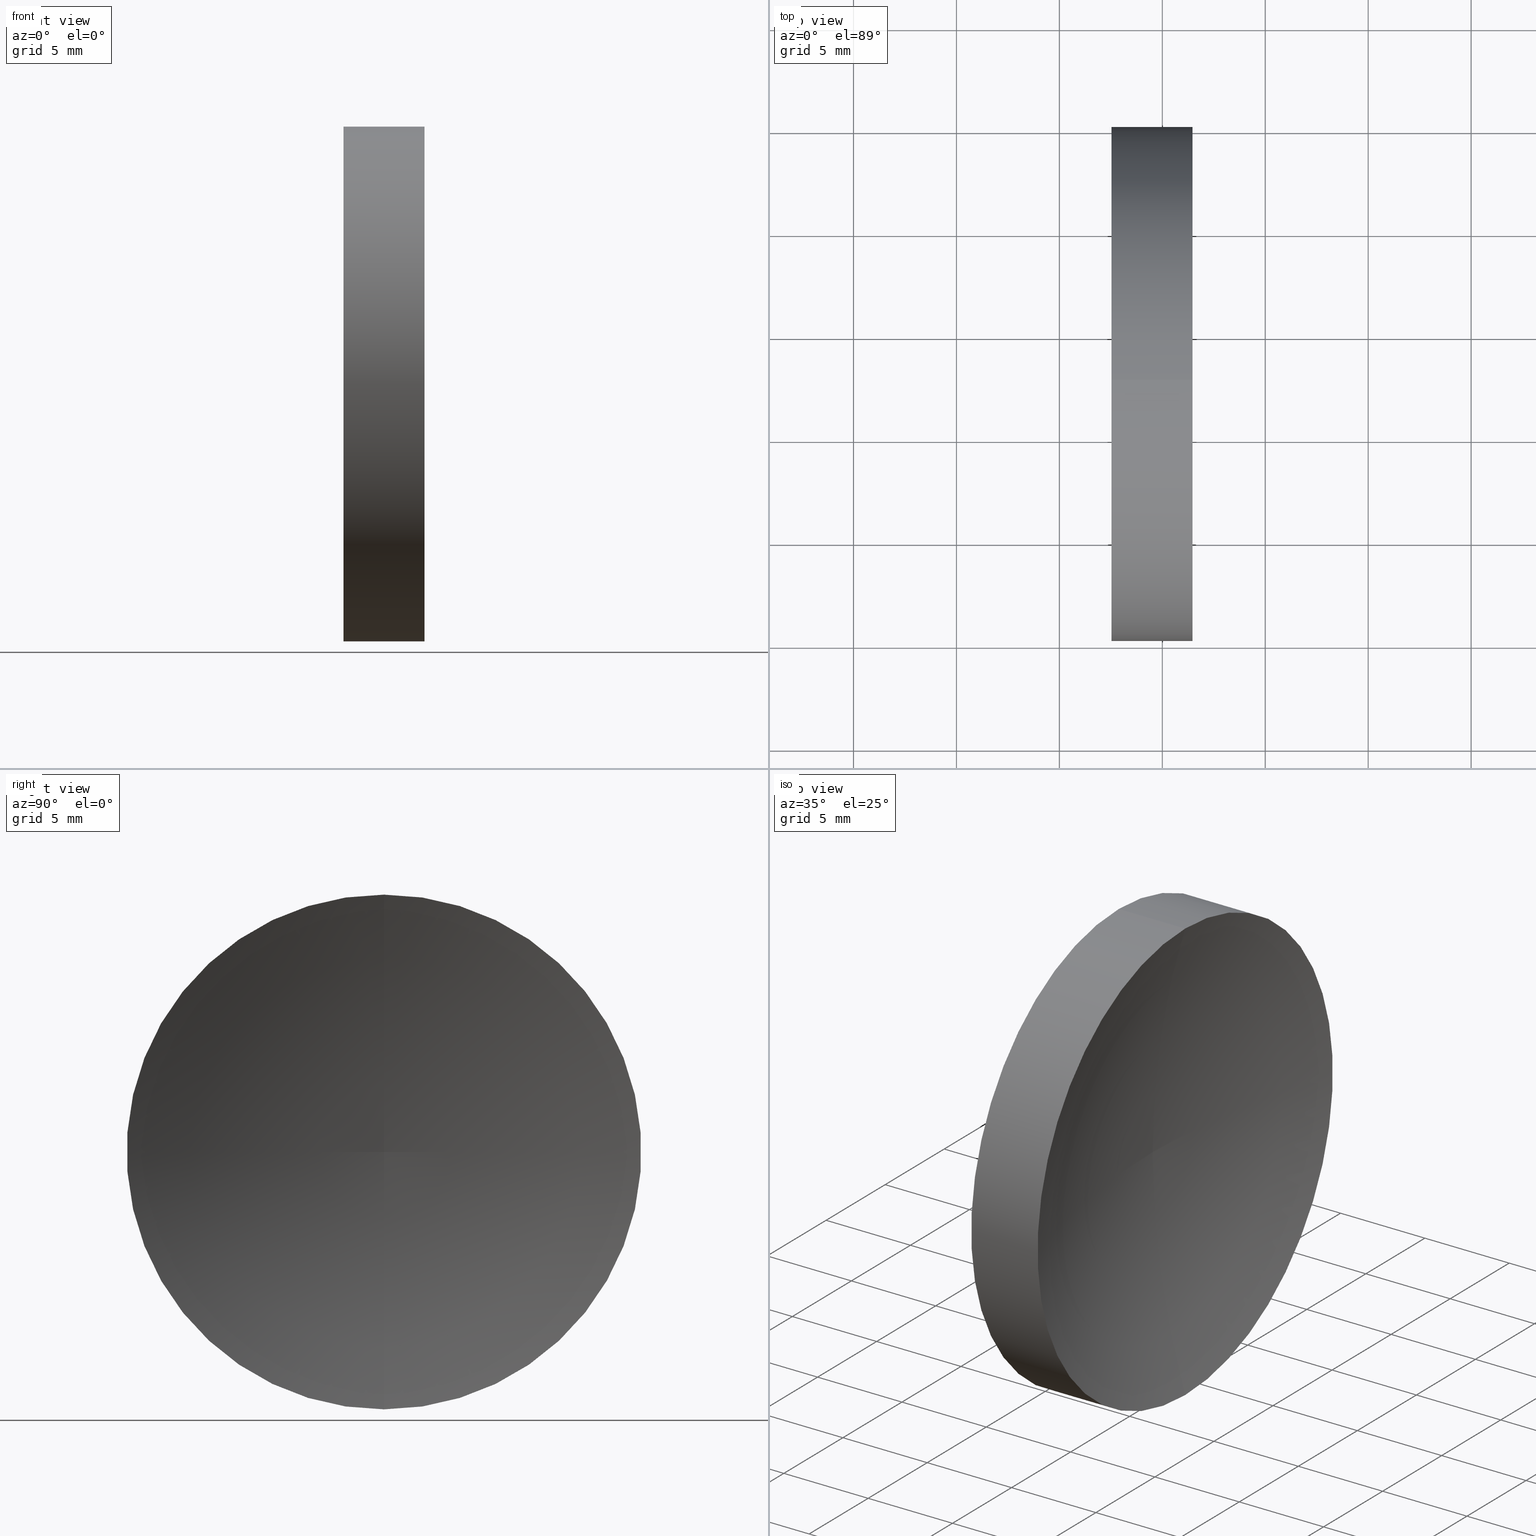
[diagram: canonical four-view strip — front | top / right | iso, engineering-drawing reading convention]
A machine part, canonical four-view strip (front | top / right | iso — engineering-drawing reading convention). The complete STEP part file that produces these views, byte-faithful:
ISO-10303-21;
HEADER;
FILE_DESCRIPTION (( 'STEP AP214' ),
    '1' );
FILE_NAME ('120034.STEP',
    '2019-06-17T03:14:14',
    ( '' ),
    ( '' ),
    'SwSTEP 2.0',
    'SolidWorks 2016',
    '' );
FILE_SCHEMA (( 'AUTOMOTIVE_DESIGN' ));
ENDSEC;

DATA;
#1 = ORIENTED_EDGE ( 'NONE', *, *, #24, .T. ) ;
#2 = CARTESIAN_POINT ( 'NONE',  ( 57.53233705252611700, 32.61076812922678400, 0.0000000000000000000 ) ) ;
#3 = DIRECTION ( 'NONE',  ( -1.000000000000000000, -0.0000000000000000000, -0.0000000000000000000 ) ) ;
#4 = COLOUR_RGB ( '',1.000000000000000000, 1.000000000000000000, 1.000000000000000000 ) ;
#5 = CARTESIAN_POINT ( 'NONE',  ( 57.53233705252611700, 32.61076812922678400, -12.49999999999999600 ) ) ;
#6 = EDGE_LOOP ( 'NONE', ( #37, #135, #159, #105 ) ) ;
#7 = EDGE_CURVE ( 'NONE', #139, #141, #50, .T. ) ;
#8 = EDGE_LOOP ( 'NONE', ( #32, #75, #46 ) ) ;
#9 = FACE_OUTER_BOUND ( 'NONE', #6, .T. ) ;
#10 = DIRECTION ( 'NONE',  ( 0.0000000000000000000, 0.0000000000000000000, 1.000000000000000000 ) ) ;
#11 = VECTOR ( 'NONE', #42, 1000.000000000000000 ) ;
#12 = ADVANCED_FACE ( 'NONE', ( #9 ), #149, .T. ) ;
#13 =( NAMED_UNIT ( * ) PLANE_ANGLE_UNIT ( ) SI_UNIT ( $, .RADIAN. ) );
#14 = CARTESIAN_POINT ( 'NONE',  ( 100.8323354242160100, 32.61076812922678400, -0.01159734503471815400 ) ) ;
#15 = VERTEX_POINT ( 'NONE', #150 ) ;
#16 = DIRECTION ( 'NONE',  ( 0.0000000000000000000, -1.000000000000000000, 0.0000000000000000000 ) ) ;
#17 = CARTESIAN_POINT ( 'NONE',  ( 61.46572775823270300, 32.61076812922678400, 0.0000000000000000000 ) ) ;
#18 = CIRCLE ( 'NONE', #125, 41.30000000000000400 ) ;
#19 = EDGE_CURVE ( 'NONE', #67, #15, #111, .T. ) ;
#20 = DIRECTION ( 'NONE',  ( -1.000000000000000000, -0.0000000000000000000, -0.0000000000000000000 ) ) ;
#21 = APPLICATION_CONTEXT ( 'automotive_design' ) ;
#22 = VERTEX_POINT ( 'NONE', #103 ) ;
#23 = DIRECTION ( 'NONE',  ( 0.0000000000000000000, 0.0000000000000000000, 1.000000000000000000 ) ) ;
#24 = EDGE_CURVE ( 'NONE', #15, #141, #40, .T. ) ;
#25 = COLOUR_RGB ( '',1.000000000000000000, 1.000000000000000000, 1.000000000000000000 ) ;
#26 = CARTESIAN_POINT ( 'NONE',  ( 100.8323354242160100, 32.61076812922678400, 0.01159734503471815400 ) ) ;
#27 = PRODUCT ( '120034', '120034', '', ( #160 ) ) ;
#28 = DIRECTION ( 'NONE',  ( 0.0000000000000000000, 0.0000000000000000000, -1.000000000000000000 ) ) ;
#29 = ORIENTED_EDGE ( 'NONE', *, *, #7, .T. ) ;
#30 = PRODUCT_DEFINITION_CONTEXT ( 'detailed design', #21, 'design' ) ;
#31 = MANIFOLD_SOLID_BREP ( '��ת1', #53 ) ;
#32 = ORIENTED_EDGE ( 'NONE', *, *, #85, .F. ) ;
#33 = AXIS2_PLACEMENT_3D ( 'NONE', #41, #163, #154 ) ;
#34 = ORIENTED_EDGE ( 'NONE', *, *, #76, .F. ) ;
#35 =( NAMED_UNIT ( * ) PLANE_ANGLE_UNIT ( ) SI_UNIT ( $, .RADIAN. ) );
#36 = PRESENTATION_STYLE_ASSIGNMENT (( #86 ) ) ;
#37 = ORIENTED_EDGE ( 'NONE', *, *, #7, .F. ) ;
#38 = APPLICATION_PROTOCOL_DEFINITION ( 'draft international standard', 'automotive_design', 1998, #98 ) ;
#39 =( NAMED_UNIT ( * ) SI_UNIT ( $, .STERADIAN. ) SOLID_ANGLE_UNIT ( ) );
#40 = CIRCLE ( 'NONE', #63, 12.49999999999999600 ) ;
#41 = CARTESIAN_POINT ( 'NONE',  ( 56.10091507999716500, 32.61076812922678400, 0.0000000000000000000 ) ) ;
#42 = DIRECTION ( 'NONE',  ( -1.000000000000000000, -0.0000000000000000000, -0.0000000000000000000 ) ) ;
#43 = DIRECTION ( 'NONE',  ( 0.0000000000000000000, 0.0000000000000000000, 1.000000000000000000 ) ) ;
#44 = ADVANCED_FACE ( 'NONE', ( #158 ), #66, .T. ) ;
#45 = AXIS2_PLACEMENT_3D ( 'NONE', #156, #107, #73 ) ;
#46 = ORIENTED_EDGE ( 'NONE', *, *, #51, .T. ) ;
#47 = DIRECTION ( 'NONE',  ( -0.0000000000000000000, 1.000000000000000000, 1.224646799147353200E-016 ) ) ;
#48 = AXIS2_PLACEMENT_3D ( 'NONE', #17, #165, #60 ) ;
#49 = UNCERTAINTY_MEASURE_WITH_UNIT (LENGTH_MEASURE( 1.000000000000000100E-005 ), #148, 'distance_accuracy_value', 'NONE');
#50 = LINE ( 'NONE', #89, #11 ) ;
#51 = EDGE_CURVE ( 'NONE', #67, #22, #18, .T. ) ;
#52 = CIRCLE ( 'NONE', #140, 41.30000000000000400 ) ;
#53 = CLOSED_SHELL ( 'NONE', ( #44, #92, #164, #12, #57 ) ) ;
#54 = MECHANICAL_DESIGN_GEOMETRIC_PRESENTATION_REPRESENTATION (  '', ( #133 ), #127 ) ;
#55 = FILL_AREA_STYLE ('',( #120 ) ) ;
#56 = SURFACE_SIDE_STYLE ('',( #109 ) ) ;
#57 = ADVANCED_FACE ( 'NONE', ( #83 ), #162, .F. ) ;
#58 = CARTESIAN_POINT ( 'NONE',  ( 56.10091507999716500, 32.61076812922678400, 12.49999999999999600 ) ) ;
#59 = AXIS2_PLACEMENT_3D ( 'NONE', #2, #3, #115 ) ;
#60 = DIRECTION ( 'NONE',  ( 0.0000000000000000000, 0.0000000000000000000, 1.000000000000000000 ) ) ;
#61 = TOROIDAL_SURFACE ( 'NONE', #131, 0.01159734503471815400, 41.30000000000000400 ) ;
#62 = DIRECTION ( 'NONE',  ( -1.000000000000000000, -0.0000000000000000000, -0.0000000000000000000 ) ) ;
#63 = AXIS2_PLACEMENT_3D ( 'NONE', #132, #78, #43 ) ;
#64 = PRODUCT_DEFINITION_FORMATION_WITH_SPECIFIED_SOURCE ( '�κ�', '', #27, .NOT_KNOWN. ) ;
#65 = AXIS2_PLACEMENT_3D ( 'NONE', #166, #108, #28 ) ;
#66 = CYLINDRICAL_SURFACE ( 'NONE', #33, 12.49999999999999600 ) ;
#67 = VERTEX_POINT ( 'NONE', #124 ) ;
#68 = DIRECTION ( 'NONE',  ( 1.000000000000000000, 0.0000000000000000000, 0.0000000000000000000 ) ) ;
#69 = EDGE_LOOP ( 'NONE', ( #1, #142 ) ) ;
#70 = DIRECTION ( 'NONE',  ( -1.000000000000000000, -0.0000000000000000000, -0.0000000000000000000 ) ) ;
#71 =( LENGTH_UNIT ( ) NAMED_UNIT ( * ) SI_UNIT ( .MILLI., .METRE. ) );
#72 = DIRECTION ( 'NONE',  ( 0.0000000000000000000, 0.0000000000000000000, 1.000000000000000000 ) ) ;
#73 = DIRECTION ( 'NONE',  ( 0.0000000000000000000, 0.0000000000000000000, 1.000000000000000000 ) ) ;
#74 = ORIENTED_EDGE ( 'NONE', *, *, #85, .T. ) ;
#75 = ORIENTED_EDGE ( 'NONE', *, *, #93, .F. ) ;
#76 = EDGE_CURVE ( 'NONE', #139, #67, #123, .T. ) ;
#77 = FACE_OUTER_BOUND ( 'NONE', #81, .T. ) ;
#78 = DIRECTION ( 'NONE',  ( -1.000000000000000000, -0.0000000000000000000, -0.0000000000000000000 ) ) ;
#79 = CIRCLE ( 'NONE', #59, 12.49999999999999600 ) ;
#80 = SHAPE_DEFINITION_REPRESENTATION ( #126, #102 ) ;
#81 = EDGE_LOOP ( 'NONE', ( #34, #74, #144 ) ) ;
#82 = PRESENTATION_LAYER_ASSIGNMENT (  '', '', ( #94 ) ) ;
#83 = FACE_OUTER_BOUND ( 'NONE', #69, .T. ) ;
#84 = EDGE_LOOP ( 'NONE', ( #118, #29, #88, #161 ) ) ;
#85 = EDGE_CURVE ( 'NONE', #139, #22, #52, .T. ) ;
#86 = SURFACE_STYLE_USAGE ( .BOTH. , #96 ) ;
#87 = DIRECTION ( 'NONE',  ( 0.0000000000000000000, 0.0000000000000000000, 1.000000000000000000 ) ) ;
#88 = ORIENTED_EDGE ( 'NONE', *, *, #24, .F. ) ;
#89 = CARTESIAN_POINT ( 'NONE',  ( 56.10091507999716500, 32.61076812922678400, -12.49999999999999600 ) ) ;
#90 = UNCERTAINTY_MEASURE_WITH_UNIT (LENGTH_MEASURE( 1.000000000000000100E-005 ), #71, 'distance_accuracy_value', 'NONE');
#91 = DIRECTION ( 'NONE',  ( -1.000000000000000000, -0.0000000000000000000, -0.0000000000000000000 ) ) ;
#92 = ADVANCED_FACE ( 'NONE', ( #77 ), #117, .F. ) ;
#93 = EDGE_CURVE ( 'NONE', #67, #139, #129, .T. ) ;
#94 = STYLED_ITEM ( 'NONE', ( #101 ), #31 ) ;
#95 = PRODUCT_DEFINITION ( 'δ֪', '', #64, #30 ) ;
#96 = SURFACE_SIDE_STYLE ('',( #153 ) ) ;
#97 = VECTOR ( 'NONE', #91, 1000.000000000000000 ) ;
#98 = APPLICATION_CONTEXT ( 'automotive_design' ) ;
#99 =( NAMED_UNIT ( * ) PLANE_ANGLE_UNIT ( ) SI_UNIT ( $, .RADIAN. ) );
#100 = AXIS2_PLACEMENT_3D ( 'NONE', #134, #70, #23 ) ;
#101 = PRESENTATION_STYLE_ASSIGNMENT (( #151 ) ) ;
#102 = ADVANCED_BREP_SHAPE_REPRESENTATION ( '120034', ( #31, #130 ), #121 ) ;
#103 = CARTESIAN_POINT ( 'NONE',  ( 59.53233705252611000, 32.61076812922678400, 0.0000000000000000000 ) ) ;
#104 =( GEOMETRIC_REPRESENTATION_CONTEXT ( 3 ) GLOBAL_UNCERTAINTY_ASSIGNED_CONTEXT ( ( #90 ) ) GLOBAL_UNIT_ASSIGNED_CONTEXT ( ( #71, #13, #106 ) ) REPRESENTATION_CONTEXT ( 'NONE', 'WORKASPACE' ) );
#105 = ORIENTED_EDGE ( 'NONE', *, *, #152, .F. ) ;
#106 =( NAMED_UNIT ( * ) SI_UNIT ( $, .STERADIAN. ) SOLID_ANGLE_UNIT ( ) );
#107 = DIRECTION ( 'NONE',  ( -1.000000000000000000, -0.0000000000000000000, -0.0000000000000000000 ) ) ;
#108 = DIRECTION ( 'NONE',  ( 1.000000000000000000, 0.0000000000000000000, 0.0000000000000000000 ) ) ;
#109 = SURFACE_STYLE_FILL_AREA ( #55 ) ;
#110 = AXIS2_PLACEMENT_3D ( 'NONE', #155, #62, #72 ) ;
#111 = LINE ( 'NONE', #58, #97 ) ;
#112 = MECHANICAL_DESIGN_GEOMETRIC_PRESENTATION_REPRESENTATION (  '', ( #94 ), #104 ) ;
#113 = FACE_OUTER_BOUND ( 'NONE', #8, .T. ) ;
#114 =( NAMED_UNIT ( * ) SI_UNIT ( $, .STERADIAN. ) SOLID_ANGLE_UNIT ( ) );
#115 = DIRECTION ( 'NONE',  ( 0.0000000000000000000, 0.0000000000000000000, 1.000000000000000000 ) ) ;
#116 =( LENGTH_UNIT ( ) NAMED_UNIT ( * ) SI_UNIT ( .MILLI., .METRE. ) );
#117 = TOROIDAL_SURFACE ( 'NONE', #110, 0.01159734503471815400, 41.30000000000000400 ) ;
#118 = ORIENTED_EDGE ( 'NONE', *, *, #93, .T. ) ;
#119 = FILL_AREA_STYLE_COLOUR ( '', #25 ) ;
#120 = FILL_AREA_STYLE_COLOUR ( '', #4 ) ;
#121 =( GEOMETRIC_REPRESENTATION_CONTEXT ( 3 ) GLOBAL_UNCERTAINTY_ASSIGNED_CONTEXT ( ( #147 ) ) GLOBAL_UNIT_ASSIGNED_CONTEXT ( ( #116, #99, #114 ) ) REPRESENTATION_CONTEXT ( 'NONE', 'WORKASPACE' ) );
#122 = DIRECTION ( 'NONE',  ( 0.0000000000000000000, 0.0000000000000000000, -1.000000000000000000 ) ) ;
#123 = CIRCLE ( 'NONE', #48, 12.49999999999999600 ) ;
#124 = CARTESIAN_POINT ( 'NONE',  ( 61.46572775823270300, 32.61076812922678400, 12.50000000000000000 ) ) ;
#125 = AXIS2_PLACEMENT_3D ( 'NONE', #26, #16, #122 ) ;
#126 = PRODUCT_DEFINITION_SHAPE ( 'NONE', 'NONE',  #95 ) ;
#127 =( GEOMETRIC_REPRESENTATION_CONTEXT ( 3 ) GLOBAL_UNCERTAINTY_ASSIGNED_CONTEXT ( ( #49 ) ) GLOBAL_UNIT_ASSIGNED_CONTEXT ( ( #148, #35, #39 ) ) REPRESENTATION_CONTEXT ( 'NONE', 'WORKASPACE' ) );
#128 = CARTESIAN_POINT ( 'NONE',  ( 0.0000000000000000000, 0.0000000000000000000, 0.0000000000000000000 ) ) ;
#129 = CIRCLE ( 'NONE', #45, 12.49999999999999600 ) ;
#130 = AXIS2_PLACEMENT_3D ( 'NONE', #128, #10, #68 ) ;
#131 = AXIS2_PLACEMENT_3D ( 'NONE', #145, #20, #87 ) ;
#132 = CARTESIAN_POINT ( 'NONE',  ( 57.53233705252611700, 32.61076812922678400, 0.0000000000000000000 ) ) ;
#133 = STYLED_ITEM ( 'NONE', ( #36 ), #102 ) ;
#134 = CARTESIAN_POINT ( 'NONE',  ( 56.10091507999716500, 32.61076812922678400, 0.0000000000000000000 ) ) ;
#135 = ORIENTED_EDGE ( 'NONE', *, *, #76, .T. ) ;
#136 = DIRECTION ( 'NONE',  ( 0.0000000000000000000, -1.680119589323783900E-016, 1.000000000000000000 ) ) ;
#137 = PRODUCT_RELATED_PRODUCT_CATEGORY ( 'part', '', ( #27 ) ) ;
#138 = CARTESIAN_POINT ( 'NONE',  ( 61.46572775823270300, 32.61076812922678400, -12.50000000000000000 ) ) ;
#139 = VERTEX_POINT ( 'NONE', #138 ) ;
#140 = AXIS2_PLACEMENT_3D ( 'NONE', #14, #47, #136 ) ;
#141 = VERTEX_POINT ( 'NONE', #5 ) ;
#142 = ORIENTED_EDGE ( 'NONE', *, *, #152, .T. ) ;
#143 = APPLICATION_PROTOCOL_DEFINITION ( 'draft international standard', 'automotive_design', 1998, #21 ) ;
#144 = ORIENTED_EDGE ( 'NONE', *, *, #51, .F. ) ;
#145 = CARTESIAN_POINT ( 'NONE',  ( 100.8323354242160100, 32.61076812922678400, 0.0000000000000000000 ) ) ;
#146 = FILL_AREA_STYLE ('',( #119 ) ) ;
#147 = UNCERTAINTY_MEASURE_WITH_UNIT (LENGTH_MEASURE( 1.000000000000000100E-005 ), #116, 'distance_accuracy_value', 'NONE');
#148 =( LENGTH_UNIT ( ) NAMED_UNIT ( * ) SI_UNIT ( .MILLI., .METRE. ) );
#149 = CYLINDRICAL_SURFACE ( 'NONE', #100, 12.49999999999999600 ) ;
#150 = CARTESIAN_POINT ( 'NONE',  ( 57.53233705252611700, 32.61076812922678400, 12.49999999999999600 ) ) ;
#151 = SURFACE_STYLE_USAGE ( .BOTH. , #56 ) ;
#152 = EDGE_CURVE ( 'NONE', #141, #15, #79, .T. ) ;
#153 = SURFACE_STYLE_FILL_AREA ( #146 ) ;
#154 = DIRECTION ( 'NONE',  ( 0.0000000000000000000, 0.0000000000000000000, 1.000000000000000000 ) ) ;
#155 = CARTESIAN_POINT ( 'NONE',  ( 100.8323354242160100, 32.61076812922678400, 0.0000000000000000000 ) ) ;
#156 = CARTESIAN_POINT ( 'NONE',  ( 61.46572775823270300, 32.61076812922678400, 0.0000000000000000000 ) ) ;
#157 = PRESENTATION_LAYER_ASSIGNMENT (  '', '', ( #133 ) ) ;
#158 = FACE_OUTER_BOUND ( 'NONE', #84, .T. ) ;
#159 = ORIENTED_EDGE ( 'NONE', *, *, #19, .T. ) ;
#160 = PRODUCT_CONTEXT ( 'NONE', #98, 'mechanical' ) ;
#161 = ORIENTED_EDGE ( 'NONE', *, *, #19, .F. ) ;
#162 = PLANE ( 'NONE',  #65 ) ;
#163 = DIRECTION ( 'NONE',  ( -1.000000000000000000, -0.0000000000000000000, -0.0000000000000000000 ) ) ;
#164 = ADVANCED_FACE ( 'NONE', ( #113 ), #61, .F. ) ;
#165 = DIRECTION ( 'NONE',  ( -1.000000000000000000, -0.0000000000000000000, -0.0000000000000000000 ) ) ;
#166 = CARTESIAN_POINT ( 'NONE',  ( 57.53233705252611700, 32.61076812922678400, 0.0000000000000000000 ) ) ;
ENDSEC;
END-ISO-10303-21;
